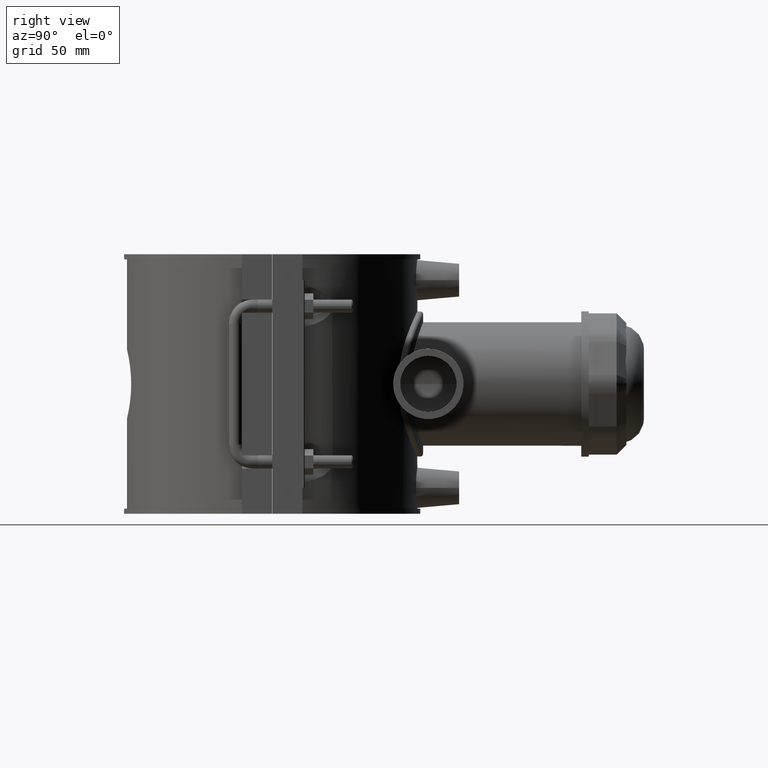
[diagram: clean part render]
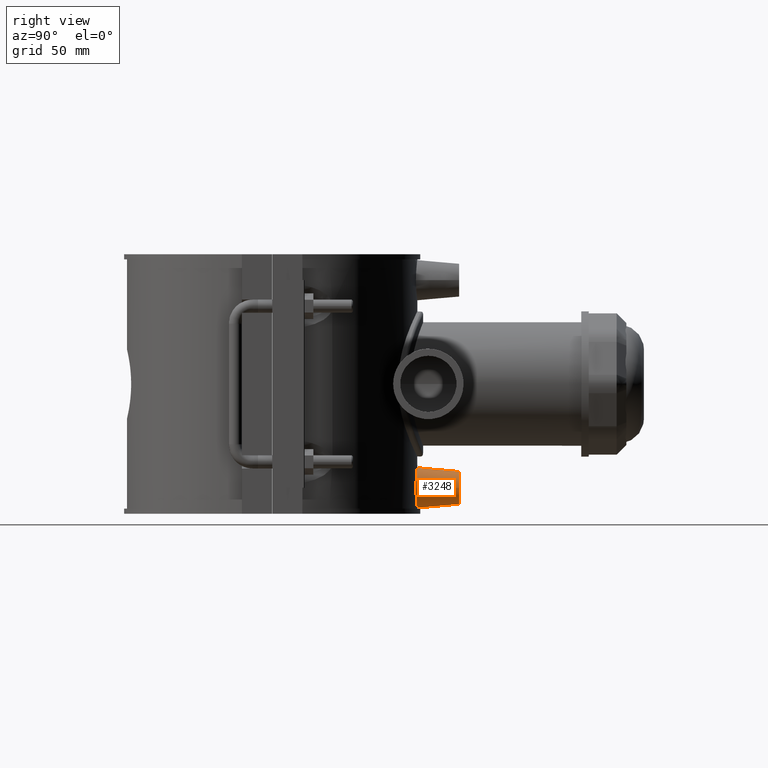
[diagram: same view with one face highlighted and labeled with its STEP entity id]
A machine part, right view. The second image highlights one B-rep face of the part: STEP entity #3248.
In plain terms, the highlighted conical surface has half-angle 5 deg.
Its self-contained STEP definition (entity closure, byte-faithful):
#34=CONICAL_SURFACE('',#3509,7.5,5.);
#804=CIRCLE('',#3508,7.5);
#869=FACE_BOUND('',#1220,.T.);
#1003=FACE_OUTER_BOUND('',#1219,.T.);
#1219=EDGE_LOOP('',(#2694));
#1220=EDGE_LOOP('',(#2695));
#1349=B_SPLINE_CURVE_WITH_KNOTS('',3,(#5638,#5639,#5640,#5641,#5642,#5643,
#5644,#5645,#5646,#5647,#5648,#5649,#5650,#5651,#5652,#5653,#5654,#5655,
#5656,#5657,#5658,#5659,#5660,#5661,#5662,#5663,#5664,#5665,#5666,#5667,
#5668,#5669,#5670,#5671),.UNSPECIFIED.,.T.,.F.,(4,2,2,2,2,2,2,2,2,2,2,2,
2,2,2,2,4),(0.,0.346935904986798,0.693871809973595,1.04030921731693,1.38674662466027,
1.73318403200361,2.07962143934695,2.42655734433375,2.77349324932054,3.12042915430734,
3.46736505929414,3.81380246663748,4.16023987398082,4.50667728132415,4.85311468866749,
5.20005059365429,5.54698649864109),.UNSPECIFIED.);
#1518=VERTEX_POINT('',#5637);
#1608=VERTEX_POINT('',#6220);
#1881=EDGE_CURVE('',#1518,#1518,#1349,.T.);
#2005=EDGE_CURVE('',#1608,#1608,#804,.T.);
#2694=ORIENTED_EDGE('',*,*,#2005,.T.);
#2695=ORIENTED_EDGE('',*,*,#1881,.F.);
#3248=ADVANCED_FACE('',(#1003,#869),#34,.T.);
#3508=AXIS2_PLACEMENT_3D('',#6221,#4181,#4182);
#3509=AXIS2_PLACEMENT_3D('',#6222,#4183,#4184);
#4181=DIRECTION('center_axis',(0.,-1.,0.));
#4182=DIRECTION('ref_axis',(1.,0.,0.));
#4183=DIRECTION('center_axis',(0.,-1.,0.));
#4184=DIRECTION('ref_axis',(1.,0.,0.));
#5637=CARTESIAN_POINT('',(9.21889149209569,65.3529803425748,-47.2));
#5638=CARTESIAN_POINT('Ctrl Pts',(9.21889149209569,65.3529803425748,-47.2));
#5639=CARTESIAN_POINT('Ctrl Pts',(9.21889149209569,65.3529803425748,-46.0435469833774));
#5640=CARTESIAN_POINT('Ctrl Pts',(8.98509660190144,65.3872751603227,-44.8119297781224));
#5641=CARTESIAN_POINT('Ctrl Pts',(8.03868301556763,65.5103601412207,-42.5506935355608));
#5642=CARTESIAN_POINT('Ctrl Pts',(7.32619281653862,65.5972977842866,-41.5209202636936));
#5643=CARTESIAN_POINT('Ctrl Pts',(5.68787926987002,65.7595974634724,-39.8987494664931));
#5644=CARTESIAN_POINT('Ctrl Pts',(4.65283917326547,65.8455692822516,-39.1970628078988));
#5645=CARTESIAN_POINT('Ctrl Pts',(2.38634954577356,65.9666070224349,-38.2665218689298));
#5646=CARTESIAN_POINT('Ctrl Pts',(1.15479135781113,66.,-38.0377153930075));
#5647=CARTESIAN_POINT('Ctrl Pts',(-1.15479135781113,66.,-38.0377153930075));
#5648=CARTESIAN_POINT('Ctrl Pts',(-2.38634954577356,65.9666070224349,-38.2665218689298));
#5649=CARTESIAN_POINT('Ctrl Pts',(-4.65283917326547,65.8455692822516,-39.1970628078988));
#5650=CARTESIAN_POINT('Ctrl Pts',(-5.68787926987002,65.7595974634724,-39.8987494664931));
#5651=CARTESIAN_POINT('Ctrl Pts',(-7.32619281653862,65.5972977842866,-41.5209202636936));
#5652=CARTESIAN_POINT('Ctrl Pts',(-8.03868301556763,65.5103601412207,-42.5506935355608));
#5653=CARTESIAN_POINT('Ctrl Pts',(-8.98509660190144,65.3872751603227,-44.8119297781224));
#5654=CARTESIAN_POINT('Ctrl Pts',(-9.21889149209569,65.3529803425748,-46.0435469833774));
#5655=CARTESIAN_POINT('Ctrl Pts',(-9.21889149209569,65.3529803425748,-48.3564530166227));
#5656=CARTESIAN_POINT('Ctrl Pts',(-8.98509660190144,65.3872751603227,-49.5880702218776));
#5657=CARTESIAN_POINT('Ctrl Pts',(-8.03868301556763,65.5103601412207,-51.8493064644393));
#5658=CARTESIAN_POINT('Ctrl Pts',(-7.32619281653862,65.5972977842866,-52.8790797363064));
#5659=CARTESIAN_POINT('Ctrl Pts',(-5.68787926987002,65.7595974634724,-54.501250533507));
#5660=CARTESIAN_POINT('Ctrl Pts',(-4.65283917326547,65.8455692822516,-55.2029371921012));
#5661=CARTESIAN_POINT('Ctrl Pts',(-2.38634954577356,65.9666070224349,-56.1334781310702));
#5662=CARTESIAN_POINT('Ctrl Pts',(-1.15479135781113,66.,-56.3622846069926));
#5663=CARTESIAN_POINT('Ctrl Pts',(1.15479135781112,66.,-56.3622846069926));
#5664=CARTESIAN_POINT('Ctrl Pts',(2.38634954577355,65.9666070224349,-56.1334781310702));
#5665=CARTESIAN_POINT('Ctrl Pts',(4.65283917326546,65.8455692822516,-55.2029371921012));
#5666=CARTESIAN_POINT('Ctrl Pts',(5.68787926987002,65.7595974634724,-54.501250533507));
#5667=CARTESIAN_POINT('Ctrl Pts',(7.32619281653862,65.5972977842866,-52.8790797363065));
#5668=CARTESIAN_POINT('Ctrl Pts',(8.03868301556763,65.5103601412207,-51.8493064644393));
#5669=CARTESIAN_POINT('Ctrl Pts',(8.98509660190144,65.3872751603227,-49.5880702218776));
#5670=CARTESIAN_POINT('Ctrl Pts',(9.21889149209569,65.3529803425748,-48.3564530166227));
#5671=CARTESIAN_POINT('Ctrl Pts',(9.21889149209569,65.3529803425748,-47.2));
#6220=CARTESIAN_POINT('',(-7.5,85.,-47.2));
#6221=CARTESIAN_POINT('Origin',(0.,85.,-47.2));
#6222=CARTESIAN_POINT('Origin',(0.,85.,-47.2));